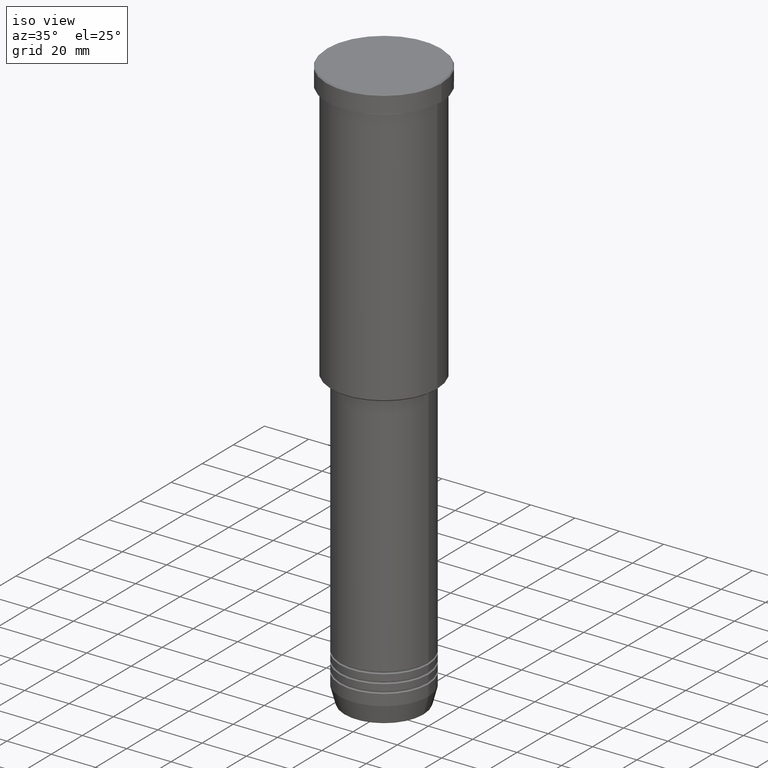
[diagram: clean part render]
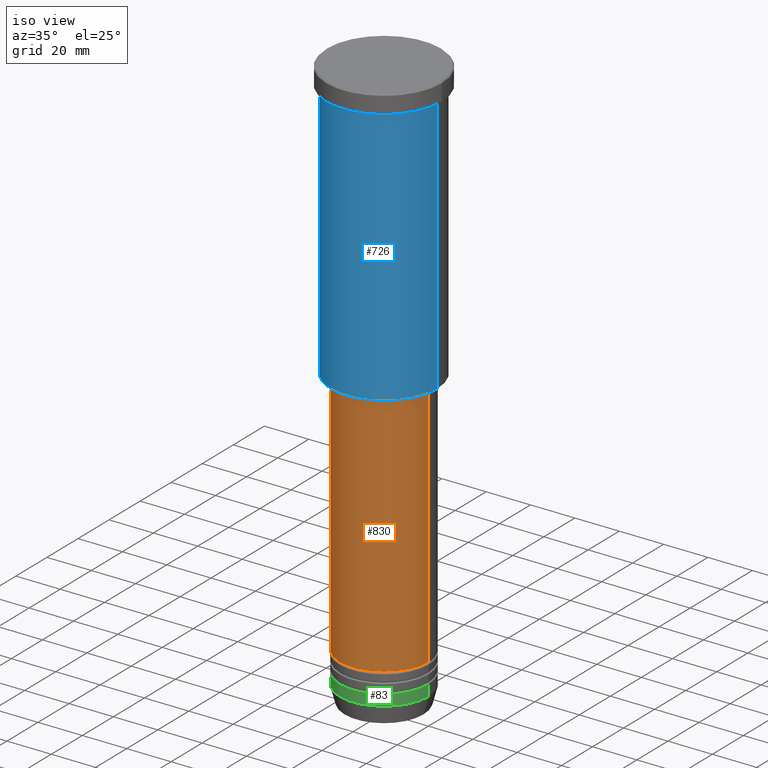
[diagram: same view with three faces highlighted in distinct colors, each labeled with its STEP entity id]
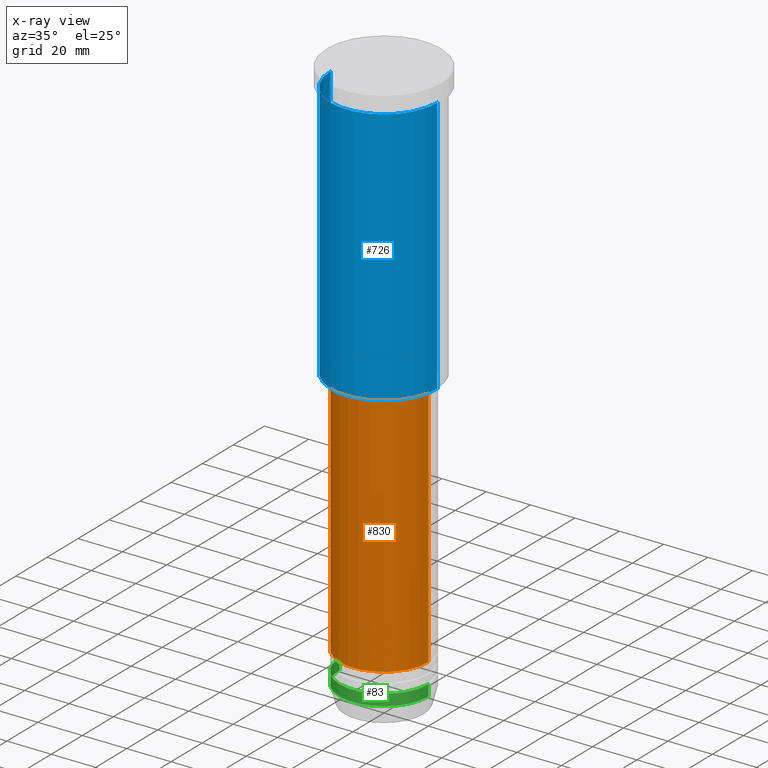
[diagram: x-ray of the same camera — body ghosted, the three highlighted faces saturated]
A machine part, iso view with three faces highlighted in distinct colors.
The next image is the same camera in x-ray (body ghosted, the three faces saturated) — at least one of them is partly hidden behind the body in this view.
Their STEP definitions:

[orange] entity #830 — the highlighted cylindrical surface (partial cylindrical patch) has radius 20 mm, axis along (-0, -0, 1).
#62 = AXIS2_PLACEMENT_3D ( 'NONE', #873, #325, #687 ) ;
#70 = FACE_OUTER_BOUND ( 'NONE', #938, .T. ) ;
#103 = CARTESIAN_POINT ( 'NONE',  ( 20.00000000000000355, 0.000000000000000000, 0.000000000000000000 ) ) ;
#138 = ORIENTED_EDGE ( 'NONE', *, *, #193, .T. ) ;
#163 = CIRCLE ( 'NONE', #465, 20.00000000000000355 ) ;
#168 = CYLINDRICAL_SURFACE ( 'NONE', #662, 20.00000000000000355 ) ;
#193 = EDGE_CURVE ( 'NONE', #321, #195, #208, .T. ) ;
#195 = VERTEX_POINT ( 'NONE', #770 ) ;
#208 = LINE ( 'NONE', #103, #451 ) ;
#209 = ORIENTED_EDGE ( 'NONE', *, *, #349, .F. ) ;
#218 = VECTOR ( 'NONE', #895, 1000.000000000000000 ) ;
#225 = CARTESIAN_POINT ( 'NONE',  ( -20.00000000000000355, 2.449293598294706907E-15, -127.0000000000000000 ) ) ;
#242 = DIRECTION ( 'NONE',  ( -0.000000000000000000, -0.000000000000000000, 1.000000000000000000 ) ) ;
#250 = VERTEX_POINT ( 'NONE', #225 ) ;
#262 = DIRECTION ( 'NONE',  ( -0.000000000000000000, -0.000000000000000000, 1.000000000000000000 ) ) ;
#301 = ORIENTED_EDGE ( 'NONE', *, *, #435, .F. ) ;
#321 = VERTEX_POINT ( 'NONE', #491 ) ;
#325 = DIRECTION ( 'NONE',  ( -0.000000000000000000, -0.000000000000000000, 1.000000000000000000 ) ) ;
#349 = EDGE_CURVE ( 'NONE', #250, #195, #1013, .T. ) ;
#435 = EDGE_CURVE ( 'NONE', #650, #250, #976, .T. ) ;
#451 = VECTOR ( 'NONE', #572, 1000.000000000000000 ) ;
#465 = AXIS2_PLACEMENT_3D ( 'NONE', #717, #262, #986 ) ;
#491 = CARTESIAN_POINT ( 'NONE',  ( 20.00000000000000355, 0.000000000000000000, -238.0000000000000000 ) ) ;
#532 = DIRECTION ( 'NONE',  ( 1.000000000000000000, 0.000000000000000000, 0.000000000000000000 ) ) ;
#572 = DIRECTION ( 'NONE',  ( -0.000000000000000000, -0.000000000000000000, 1.000000000000000000 ) ) ;
#650 = VERTEX_POINT ( 'NONE', #729 ) ;
#662 = AXIS2_PLACEMENT_3D ( 'NONE', #872, #242, #532 ) ;
#687 = DIRECTION ( 'NONE',  ( 1.000000000000000000, 0.000000000000000000, 0.000000000000000000 ) ) ;
#717 = CARTESIAN_POINT ( 'NONE',  ( 0.000000000000000000, 0.000000000000000000, -238.0000000000000000 ) ) ;
#729 = CARTESIAN_POINT ( 'NONE',  ( -20.00000000000000355, 2.449293598294706907E-15, -238.0000000000000000 ) ) ;
#770 = CARTESIAN_POINT ( 'NONE',  ( 20.00000000000000355, 0.000000000000000000, -127.0000000000000000 ) ) ;
#830 = ADVANCED_FACE ( 'NONE', ( #70 ), #168, .T. ) ;
#872 = CARTESIAN_POINT ( 'NONE',  ( 0.000000000000000000, 0.000000000000000000, 0.000000000000000000 ) ) ;
#873 = CARTESIAN_POINT ( 'NONE',  ( 0.000000000000000000, 0.000000000000000000, -127.0000000000000000 ) ) ;
#877 = EDGE_CURVE ( 'NONE', #650, #321, #163, .T. ) ;
#895 = DIRECTION ( 'NONE',  ( -0.000000000000000000, -0.000000000000000000, 1.000000000000000000 ) ) ;
#938 = EDGE_LOOP ( 'NONE', ( #301, #1043, #138, #209 ) ) ;
#965 = CARTESIAN_POINT ( 'NONE',  ( -20.00000000000000355, 2.449293598294706907E-15, 0.000000000000000000 ) ) ;
#976 = LINE ( 'NONE', #965, #218 ) ;
#986 = DIRECTION ( 'NONE',  ( 1.000000000000000000, 0.000000000000000000, 0.000000000000000000 ) ) ;
#1013 = CIRCLE ( 'NONE', #62, 20.00000000000000355 ) ;
#1043 = ORIENTED_EDGE ( 'NONE', *, *, #877, .T. ) ;

[blue] entity #726 — the highlighted cylindrical surface (partial cylindrical patch) has radius 24 mm, axis along (-0, -0, 1).
#52 = LINE ( 'NONE', #146, #911 ) ;
#61 = CIRCLE ( 'NONE', #87, 24.00000000000000000 ) ;
#65 = EDGE_CURVE ( 'NONE', #746, #1146, #61, .T. ) ;
#87 = AXIS2_PLACEMENT_3D ( 'NONE', #117, #476, #373 ) ;
#117 = CARTESIAN_POINT ( 'NONE',  ( 0.000000000000000000, 0.000000000000000000, -125.4999999999999716 ) ) ;
#120 = DIRECTION ( 'NONE',  ( -0.000000000000000000, -0.000000000000000000, 1.000000000000000000 ) ) ;
#133 = CARTESIAN_POINT ( 'NONE',  ( -24.00000000000000000, 2.939152317953647894E-15, -125.4999999999999716 ) ) ;
#143 = FACE_OUTER_BOUND ( 'NONE', #655, .T. ) ;
#146 = CARTESIAN_POINT ( 'NONE',  ( 24.00000000000000000, 0.000000000000000000, 0.000000000000000000 ) ) ;
#183 = ORIENTED_EDGE ( 'NONE', *, *, #1049, .F. ) ;
#212 = CARTESIAN_POINT ( 'NONE',  ( -24.00000000000000000, 2.939152317953647894E-15, 0.000000000000000000 ) ) ;
#267 = EDGE_CURVE ( 'NONE', #1146, #713, #52, .T. ) ;
#291 = CARTESIAN_POINT ( 'NONE',  ( -24.00000000000000000, 2.939152317953647894E-15, -8.999999999999994671 ) ) ;
#307 = CARTESIAN_POINT ( 'NONE',  ( 24.00000000000000000, 0.000000000000000000, -8.999999999999994671 ) ) ;
#373 = DIRECTION ( 'NONE',  ( -1.000000000000000000, 0.000000000000000000, 0.000000000000000000 ) ) ;
#378 = DIRECTION ( 'NONE',  ( 1.000000000000000000, 0.000000000000000000, 0.000000000000000000 ) ) ;
#395 = CIRCLE ( 'NONE', #870, 24.00000000000000000 ) ;
#409 = CARTESIAN_POINT ( 'NONE',  ( 24.00000000000000000, 0.000000000000000000, -125.4999999999999716 ) ) ;
#441 = CARTESIAN_POINT ( 'NONE',  ( 0.000000000000000000, 0.000000000000000000, -8.999999999999994671 ) ) ;
#476 = DIRECTION ( 'NONE',  ( -0.000000000000000000, -0.000000000000000000, 1.000000000000000000 ) ) ;
#479 = DIRECTION ( 'NONE',  ( -0.000000000000000000, -0.000000000000000000, 1.000000000000000000 ) ) ;
#540 = VERTEX_POINT ( 'NONE', #291 ) ;
#582 = DIRECTION ( 'NONE',  ( -0.000000000000000000, -0.000000000000000000, 1.000000000000000000 ) ) ;
#655 = EDGE_LOOP ( 'NONE', ( #879, #768, #883, #183 ) ) ;
#713 = VERTEX_POINT ( 'NONE', #307 ) ;
#726 = ADVANCED_FACE ( 'NONE', ( #143 ), #761, .T. ) ;
#746 = VERTEX_POINT ( 'NONE', #133 ) ;
#752 = LINE ( 'NONE', #212, #1170 ) ;
#761 = CYLINDRICAL_SURFACE ( 'NONE', #1035, 24.00000000000000000 ) ;
#768 = ORIENTED_EDGE ( 'NONE', *, *, #65, .T. ) ;
#790 = EDGE_CURVE ( 'NONE', #746, #540, #752, .T. ) ;
#853 = DIRECTION ( 'NONE',  ( 1.000000000000000000, 0.000000000000000000, 0.000000000000000000 ) ) ;
#859 = CARTESIAN_POINT ( 'NONE',  ( 0.000000000000000000, 0.000000000000000000, 0.000000000000000000 ) ) ;
#870 = AXIS2_PLACEMENT_3D ( 'NONE', #441, #1183, #378 ) ;
#879 = ORIENTED_EDGE ( 'NONE', *, *, #790, .F. ) ;
#883 = ORIENTED_EDGE ( 'NONE', *, *, #267, .T. ) ;
#911 = VECTOR ( 'NONE', #479, 1000.000000000000000 ) ;
#1035 = AXIS2_PLACEMENT_3D ( 'NONE', #859, #120, #853 ) ;
#1049 = EDGE_CURVE ( 'NONE', #540, #713, #395, .T. ) ;
#1146 = VERTEX_POINT ( 'NONE', #409 ) ;
#1170 = VECTOR ( 'NONE', #582, 1000.000000000000000 ) ;
#1183 = DIRECTION ( 'NONE',  ( -0.000000000000000000, -0.000000000000000000, 1.000000000000000000 ) ) ;

[green] entity #83 — the highlighted cylindrical surface (partial cylindrical patch) has radius 20 mm, axis along (-0, -0, 1).
#16 = FACE_OUTER_BOUND ( 'NONE', #921, .T. ) ;
#38 = LINE ( 'NONE', #1012, #1078 ) ;
#74 = EDGE_CURVE ( 'NONE', #702, #975, #1103, .T. ) ;
#83 = ADVANCED_FACE ( 'NONE', ( #16 ), #844, .T. ) ;
#99 = CARTESIAN_POINT ( 'NONE',  ( 0.000000000000000000, 0.000000000000000000, 0.000000000000000000 ) ) ;
#144 = VECTOR ( 'NONE', #380, 1000.000000000000000 ) ;
#147 = CIRCLE ( 'NONE', #627, 20.00000000000000355 ) ;
#175 = VERTEX_POINT ( 'NONE', #839 ) ;
#185 = CARTESIAN_POINT ( 'NONE',  ( 0.000000000000000000, 0.000000000000000000, -252.0000000000000000 ) ) ;
#322 = DIRECTION ( 'NONE',  ( -0.000000000000000000, -0.000000000000000000, 1.000000000000000000 ) ) ;
#327 = DIRECTION ( 'NONE',  ( -0.000000000000000000, -0.000000000000000000, 1.000000000000000000 ) ) ;
#366 = VERTEX_POINT ( 'NONE', #1148 ) ;
#380 = DIRECTION ( 'NONE',  ( -0.000000000000000000, -0.000000000000000000, 1.000000000000000000 ) ) ;
#390 = DIRECTION ( 'NONE',  ( -0.000000000000000000, -0.000000000000000000, 1.000000000000000000 ) ) ;
#410 = AXIS2_PLACEMENT_3D ( 'NONE', #980, #327, #616 ) ;
#423 = ORIENTED_EDGE ( 'NONE', *, *, #896, .F. ) ;
#437 = CARTESIAN_POINT ( 'NONE',  ( -20.00000000000000000, 2.449293598294706513E-15, -247.0000000000000000 ) ) ;
#461 = DIRECTION ( 'NONE',  ( 1.000000000000000000, 0.000000000000000000, 0.000000000000000000 ) ) ;
#481 = ORIENTED_EDGE ( 'NONE', *, *, #1071, .T. ) ;
#495 = CARTESIAN_POINT ( 'NONE',  ( -20.00000000000000355, 2.449293598294706907E-15, -252.0000000000000000 ) ) ;
#616 = DIRECTION ( 'NONE',  ( 1.000000000000000000, 0.000000000000000000, 0.000000000000000000 ) ) ;
#627 = AXIS2_PLACEMENT_3D ( 'NONE', #185, #1004, #461 ) ;
#702 = VERTEX_POINT ( 'NONE', #495 ) ;
#733 = AXIS2_PLACEMENT_3D ( 'NONE', #99, #390, #927 ) ;
#839 = CARTESIAN_POINT ( 'NONE',  ( 20.00000000000000355, 0.000000000000000000, -252.0000000000000000 ) ) ;
#844 = CYLINDRICAL_SURFACE ( 'NONE', #733, 20.00000000000000355 ) ;
#896 = EDGE_CURVE ( 'NONE', #975, #366, #924, .T. ) ;
#915 = CARTESIAN_POINT ( 'NONE',  ( -20.00000000000000355, 2.449293598294706907E-15, 0.000000000000000000 ) ) ;
#921 = EDGE_LOOP ( 'NONE', ( #1007, #481, #1157, #423 ) ) ;
#924 = CIRCLE ( 'NONE', #410, 20.00000000000000000 ) ;
#927 = DIRECTION ( 'NONE',  ( 1.000000000000000000, 0.000000000000000000, 0.000000000000000000 ) ) ;
#975 = VERTEX_POINT ( 'NONE', #437 ) ;
#980 = CARTESIAN_POINT ( 'NONE',  ( 0.000000000000000000, 0.000000000000000000, -247.0000000000000000 ) ) ;
#1004 = DIRECTION ( 'NONE',  ( -0.000000000000000000, -0.000000000000000000, 1.000000000000000000 ) ) ;
#1007 = ORIENTED_EDGE ( 'NONE', *, *, #74, .F. ) ;
#1012 = CARTESIAN_POINT ( 'NONE',  ( 20.00000000000000355, 0.000000000000000000, 0.000000000000000000 ) ) ;
#1071 = EDGE_CURVE ( 'NONE', #702, #175, #147, .T. ) ;
#1078 = VECTOR ( 'NONE', #322, 1000.000000000000000 ) ;
#1103 = LINE ( 'NONE', #915, #144 ) ;
#1141 = EDGE_CURVE ( 'NONE', #175, #366, #38, .T. ) ;
#1148 = CARTESIAN_POINT ( 'NONE',  ( 20.00000000000000000, 0.000000000000000000, -247.0000000000000000 ) ) ;
#1157 = ORIENTED_EDGE ( 'NONE', *, *, #1141, .T. ) ;